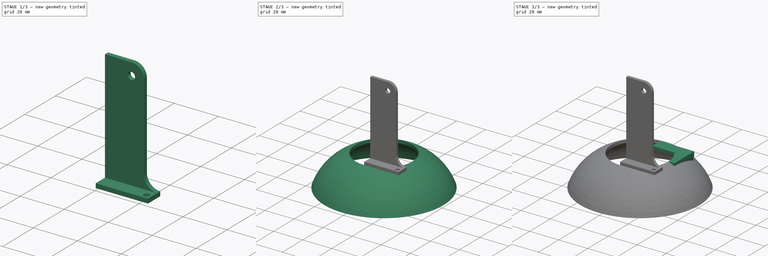
[diagram: build sequence overview — one tinted view per stage of 3, left to right]
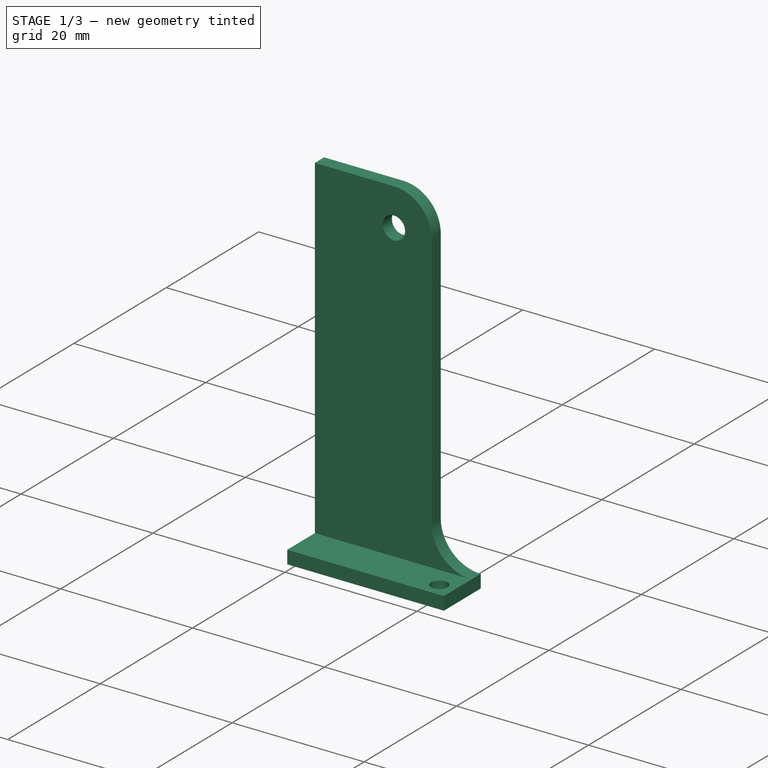
[diagram: stage 1 of 3 — iso view after this stage's code; geometry added in this stage tinted green]
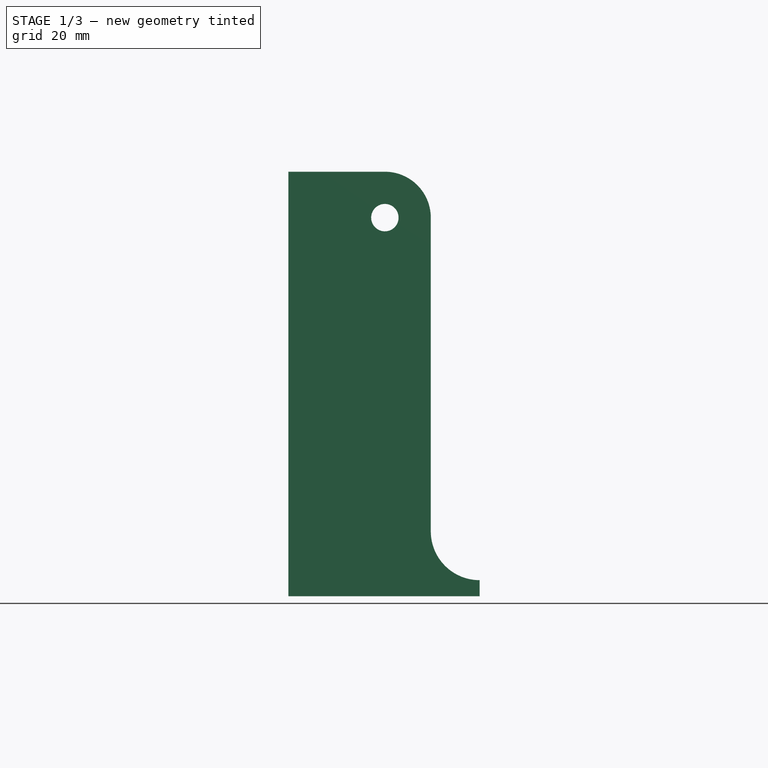
[diagram: stage 1 of 3 — front view after this stage's code; geometry added in this stage tinted green]
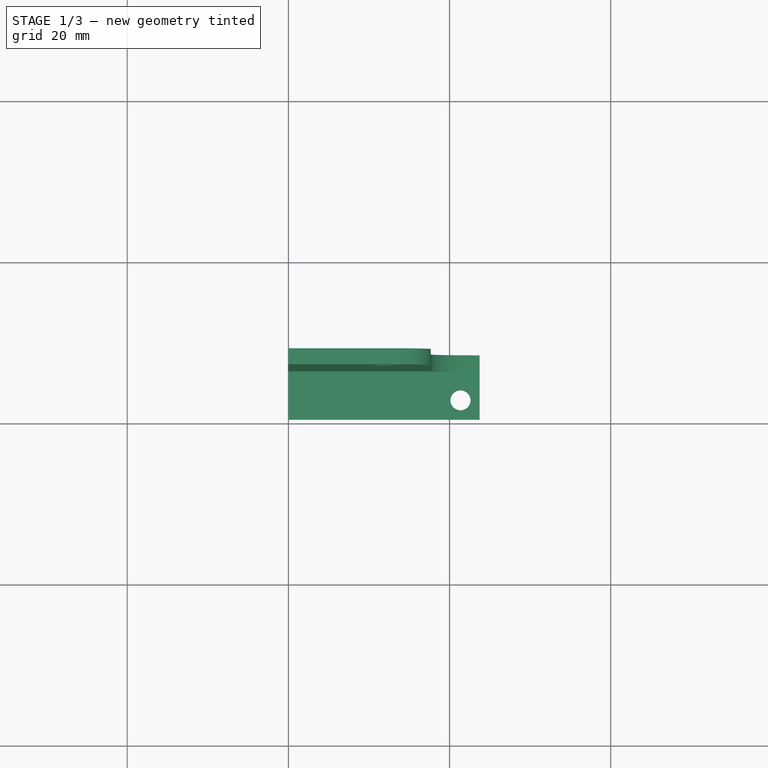
[diagram: stage 1 of 3 — top view after this stage's code; geometry added in this stage tinted green]
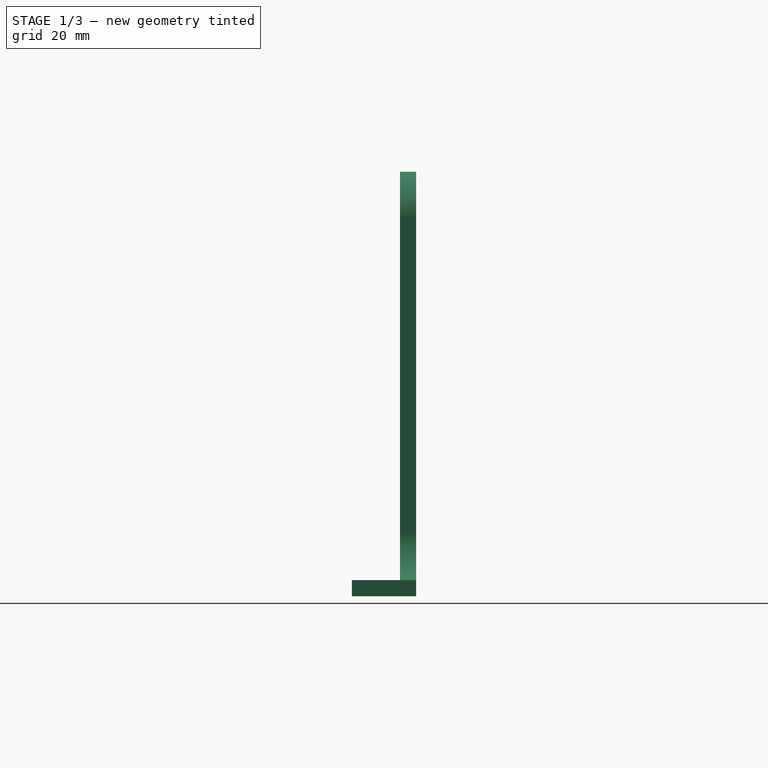
[diagram: stage 1 of 3 — right view after this stage's code; geometry added in this stage tinted green]
FCSTD DOCUMENT  (FreeCAD 0.18.4R)
Label: 5
License: All rights reserved
LicenseURL: http://en.wikipedia.org/wiki/All_rights_reserved
objects: Sketcher::SketchObject×6, PartDesign::Pad×4, PartDesign::Mirrored×3, PartDesign::Revolution×2, PartDesign::Body×2, PartDesign::Plane×1, PartDesign::Line×1, PartDesign::Pocket×1, PartDesign::MultiTransform×1
note: 28 computed .brp shape members not serialized (recipe doc carries the construction recipe); baked Part::Feature solids carry a one-line shape summary decoded from their .brp

FEATURE [Sketcher::SketchObject] Sketch002  label="Sketch003"
  MapMode = 5
  Placement = pos=(1e-15,5.14e-14,35.2204) rot=(0,0,1;0rad)
  constraints (1):
    c: Diameter(g0) = 2.5
FEATURE [PartDesign::Pocket] Pocket  label="Unnamed"
  Length = 100
  Length2 = 100
  Type = 0
FEATURE [PartDesign::MultiTransform] MultiTransform  label="Unnamed"
FEATURE [PartDesign::Mirrored] Mirrored  label="Unnamed"
FEATURE [PartDesign::Mirrored] Mirrored001  label="Unnamed"
FEATURE [PartDesign::Body] Body
  Group = -> [Sketch,Revolution,DatumPlane,Sketch001,Pad,DatumLine,Revolution001,Sketch002,Pocket,MultiTransform,Mirrored,Mirrored001]
  Origin = -> Origin
  Tip = -> MultiTransform
FEATURE [PartDesign::Body] Body001  label="Unnamed"
FEATURE [Sketcher::SketchObject] Sketch003  label="Unnamed"
FEATURE [PartDesign::Pad] Pad001
  Length = 2
  Length2 = 100
  Profile = -> Sketch003
  Type = 0
FEATURE [Sketcher::SketchObject] Sketch005
  ExternalGeometry = -> [Pad001]
  MapMode = 5
  Placement = pos=(0,-11.53,1.68e-14) rot=(0,0.707107,0.707107;3.14159rad)
  Support = -> [Pad001]
  constraints (17):
    c: Distance(g0,g-3) = 45
    c: Diameter(g0) = 3.4
    c: Distance(g0,g-2) = 11.975
    c: Coincident(g1,g2)
    c: Coincident(g2,g3)
    c: Horizontal(g3)
    c: Vertical(g2)
    c: Vertical(g4)
    c: Distance(g0,g3) = 5.7
    c: Tangent(g4,g5) = -1.5708
    c: Tangent(g3,g5) = -1.5708
    c: Coincident(g1,g-3)
    c: Coincident(g5,g0)
    c: Coincident(g6,g-3)
    c: Tangent(g6,g-3)
    c: Tangent(g4,g6) = 1.5708
    c: Coincident(g1,g6)
FEATURE [PartDesign::Pad] Pad002
  BaseFeature = -> Pad001
  Length = 2
  Length2 = 100
  Profile = -> Sketch005
  Reversed = true
  Type = 0
FEATURE [Sketcher::SketchObject] Sketch006  label="Unnamed"
  ExternalGeometry = -> [Pad002]
  constraints (9):
    c: Coincident(g0,g-3)
    c: Vertical(g0)
    c: Coincident(g1,g-4)
    c: Coincident(g1,g0)
    c: Coincident(g2,g1)
    c: Coincident(g2,g-4)
    c: Coincident(g3,g2)
    c: Coincident(g3,g0)
    c: Angle(g2,g1) = 0.261799
FEATURE [PartDesign::Pad] Pad003  label="Unnamed"
  Length = 100
  Length2 = 100
  Type = 0
FEATURE [PartDesign::Mirrored] Mirrored002  label="Unnamed"
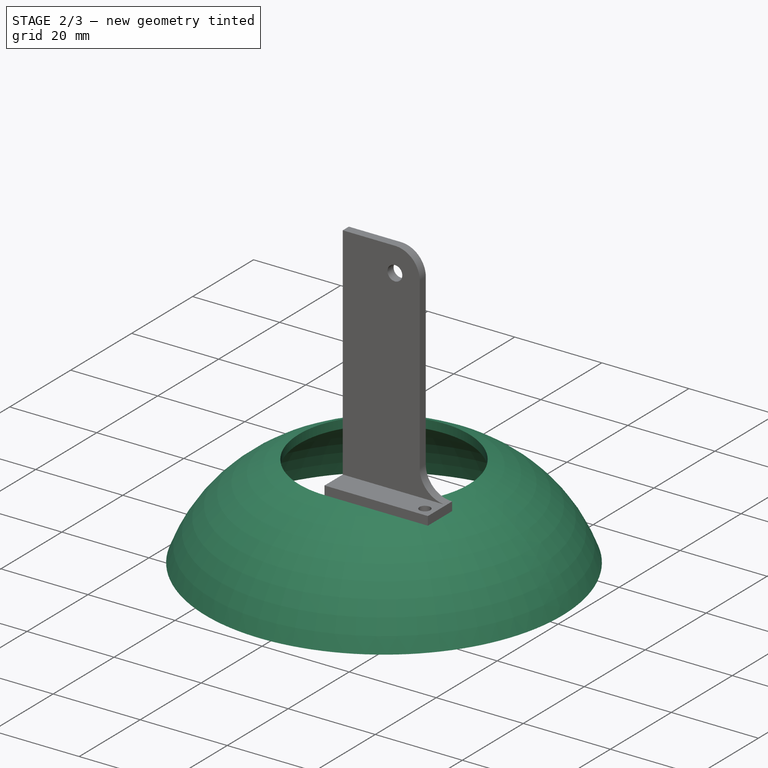
[diagram: stage 2 of 3 — iso view after this stage's code; geometry added in this stage tinted green]
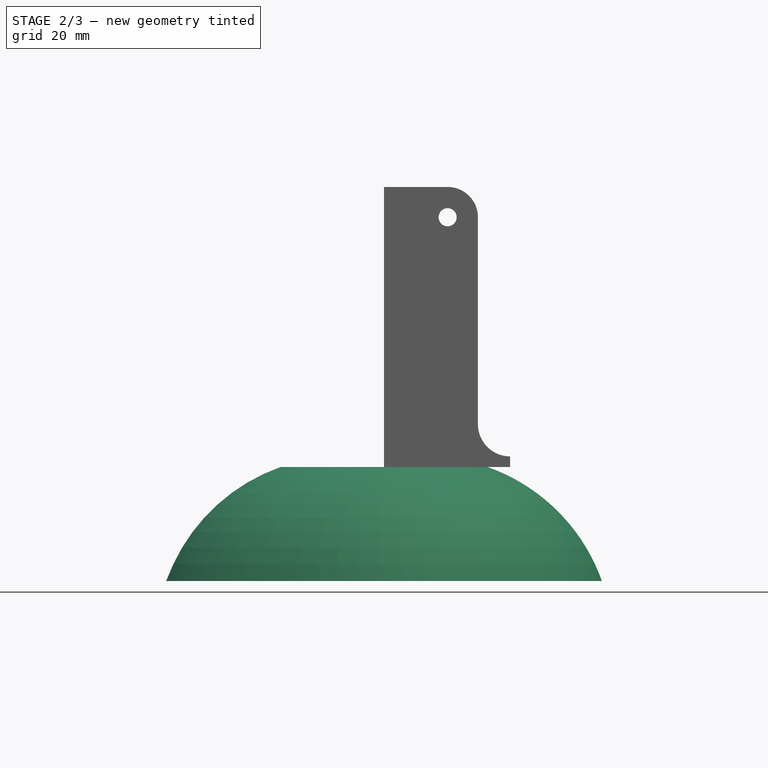
[diagram: stage 2 of 3 — front view after this stage's code; geometry added in this stage tinted green]
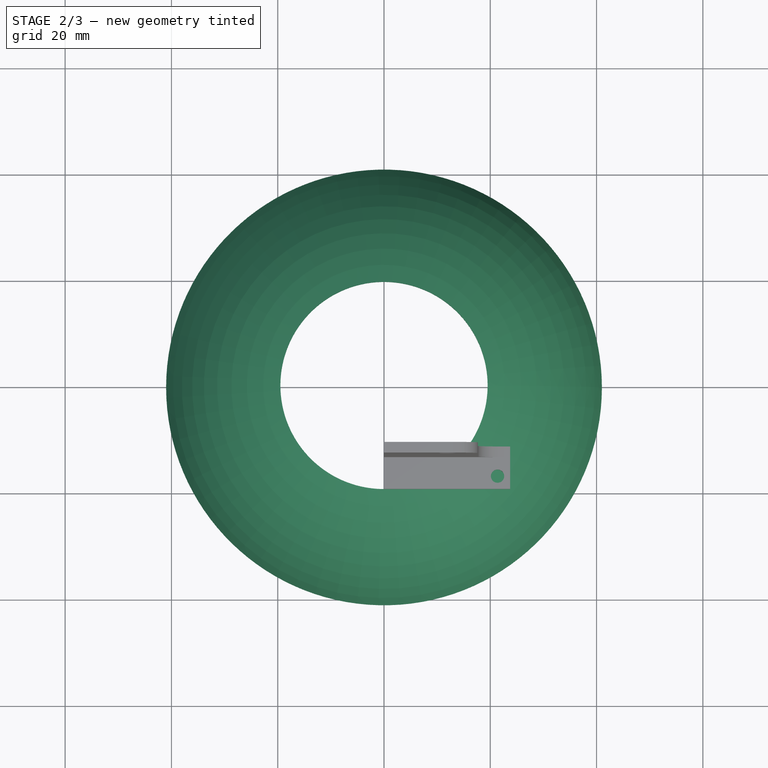
[diagram: stage 2 of 3 — top view after this stage's code; geometry added in this stage tinted green]
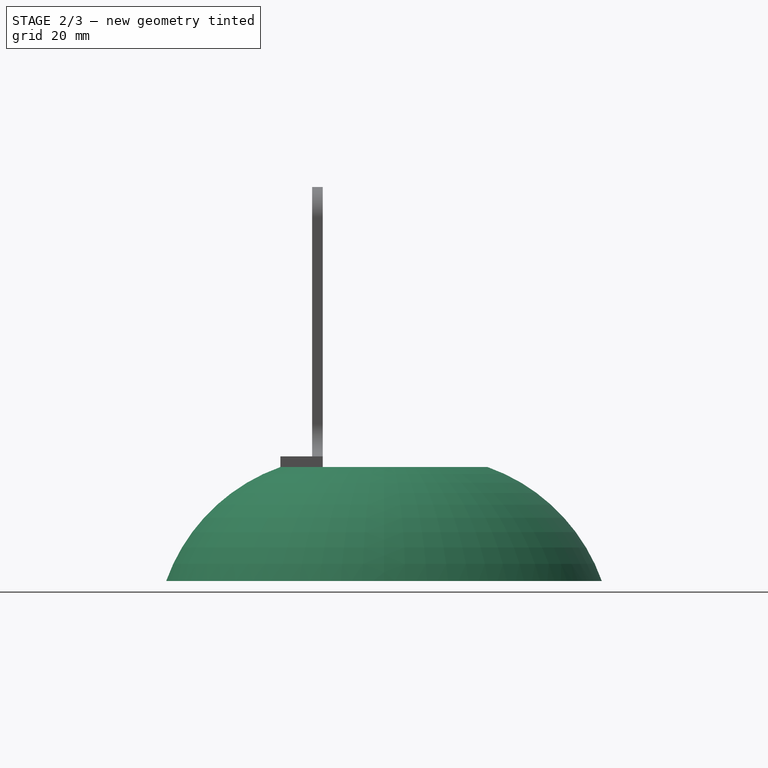
[diagram: stage 2 of 3 — right view after this stage's code; geometry added in this stage tinted green]
FEATURE [Sketcher::SketchObject] Sketch
  MapMode = 5
  Placement = pos=(0,0,0) rot=(1,0,0;1.5708rad)
  Support = -> [XZ_Plane]
  constraints (21):
    c: PointOnObject(g0,g-1)
    c: PointOnObject(g0,g-1)
    c: PointOnObject(g1,g-2)
    c: Coincident(g1,g0)
    c: Horizontal(g1)
    c: Distance(g0,g-1) = 43
    c: Distance(g1) = 17
    c: Distance(g-1,g1) = 34
    c: Coincident(g2,g0)
    c: PointOnObject(g2,g0)
    c: Distance(g2,g-2) = 40.2
    c: Distance(g2,g-2) = 19.5
    c: Coincident(g3,g2)
    c: Vertical(g3)
    c: Distance(g3) = 2
    c: Coincident(g4,g2)
    c: Horizontal(g4)
    c: Distance(g4) = 0.8
    c: Coincident(g5,g3)
    c: Coincident(g5,g4)
    c: Vertical(g5,g2)
FEATURE [PartDesign::Revolution] Revolution
  Angle = 360
  Axis = (0,2e-16,1)
  Base = (0,0,0)
  Placement = pos=(0,0,0) rot=(1,0,0;1.5708rad)
  Profile = -> Sketch
  ReferenceAxis = -> Sketch [V_Axis]
  Reversed = true
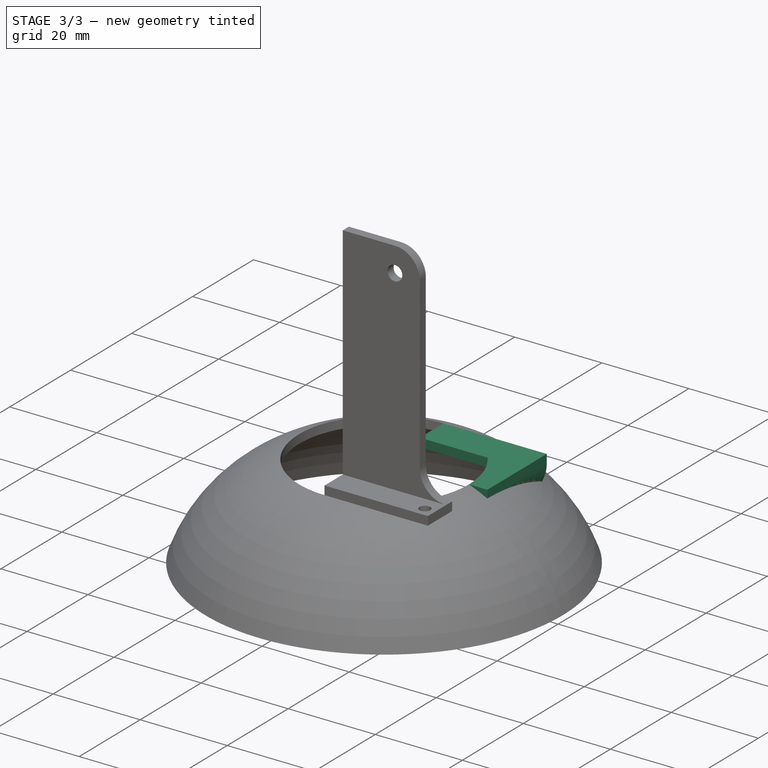
[diagram: stage 3 of 3 — iso view after this stage's code; geometry added in this stage tinted green]
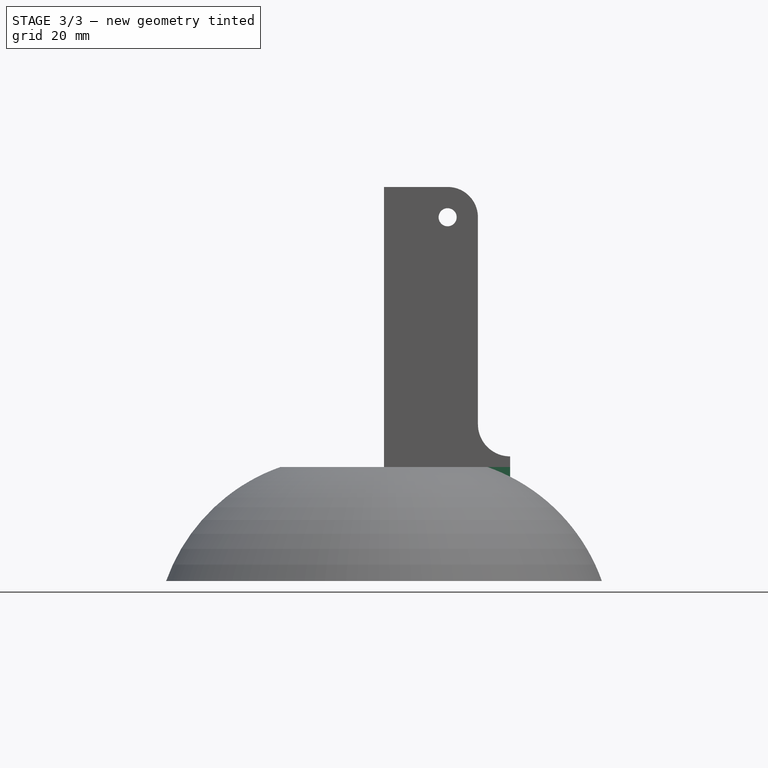
[diagram: stage 3 of 3 — front view after this stage's code; geometry added in this stage tinted green]
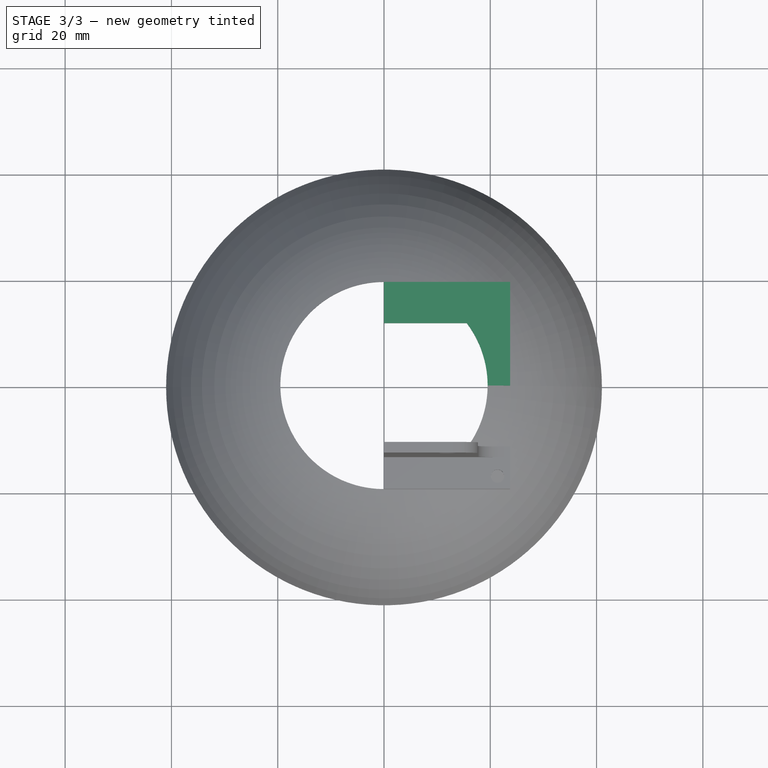
[diagram: stage 3 of 3 — top view after this stage's code; geometry added in this stage tinted green]
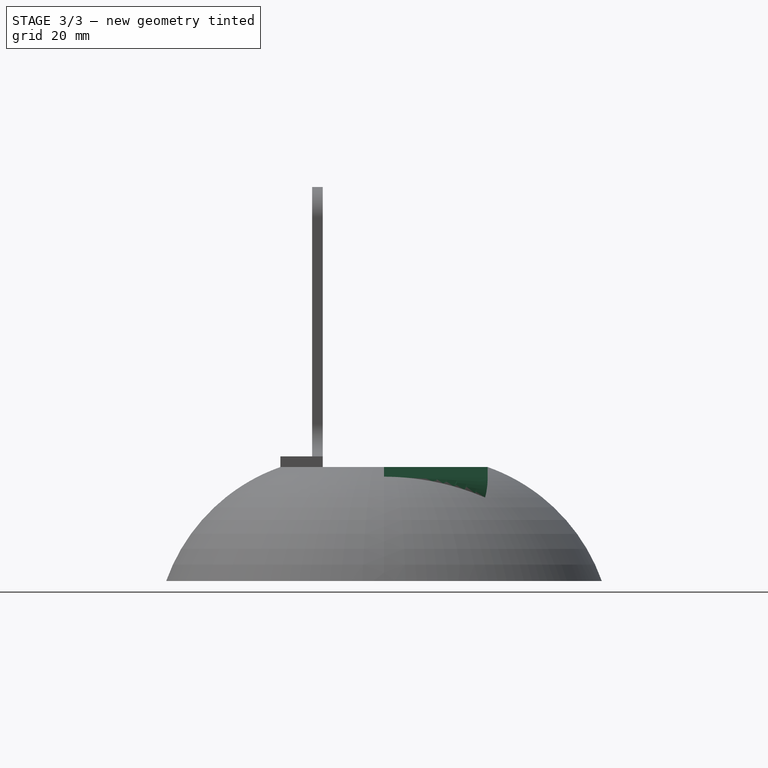
[diagram: stage 3 of 3 — right view after this stage's code; geometry added in this stage tinted green]
FEATURE [PartDesign::Plane] DatumPlane
  Length = 26.8601
  MapMode = 11
  Placement = pos=(0,3.13e-14,35.2204) rot=(0,0,1;1.5708rad)
  ResizeMode = 0
  Support = -> [Revolution]
  Width = 33.9749
FEATURE [Sketcher::SketchObject] Sketch001
  MapMode = 5
  Placement = pos=(0,3.13e-14,35.2204) rot=(0,0,1;1.5708rad)
  Support = -> [DatumPlane]
  constraints (26):
    c: PointOnObject(g0,g-1)
    c: Coincident(g0,g-1)
    c: Coincident(g1,g-1)
    c: Horizontal(g1)
    c: Equal(g1,g0)
    c: Distance(g1,g0) = 23.5
    c: PointOnObject(g2,g-2)
    c: Coincident(g2,g-1)
    c: Coincident(g3,g-1)
    c: Vertical(g3)
    c: Equal(g2,g3)
    c: Distance(g3,g2) = 39
    c: PointOnObject(g4,g-1)
    c: Vertical(g4)
    c: Coincident(g4,g5)
    c: PointOnObject(g5,g-2)
    c: Horizontal(g5)
    c: Coincident(g5,g6)
    c: Coincident(g7,g-1)
    c: Coincident(g7,g6)
    c: Coincident(g6,g3)
    c: Coincident(g8,g1)
    c: Vertical(g8)
    c: Coincident(g9,g8)
    c: Coincident(g9,g4)
    c: Coincident(g7,g8)
FEATURE [PartDesign::Pad] Pad
  BaseFeature = -> Revolution
  Length = 2
  Length2 = 95
  Placement = pos=(0,0,0) rot=(1,0,0;1.5708rad)
  Profile = -> Sketch001
  Reversed = true
  Type = 0
FEATURE [PartDesign::Line] DatumLine
  AttacherType = Attacher::AttachEngineLine
  MapMode = 29
  Placement = pos=(18.947,11.8323,33.2204) rot=(0.92677,0.265611,0.265611;1.64677rad)
  Support = -> [Pad]
FEATURE [PartDesign::Revolution] Revolution001
  Angle = 30
  Axis = (0.529689,-0.848192,1.2e-15)
  Base = (18.947,11.8323,33.2204)
  BaseFeature = -> Pad
  Placement = pos=(0,0,0) rot=(1,0,0;1.5708rad)
  Profile = -> Pad [Face12]
  ReferenceAxis = -> DatumLine
  Reversed = true
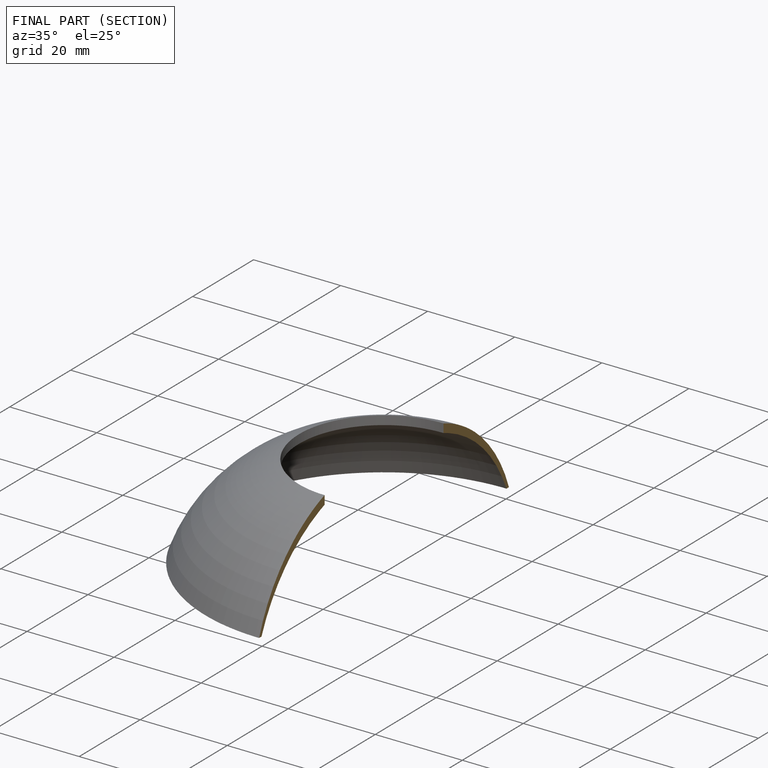
[diagram: finished part — half-section view (interior)]
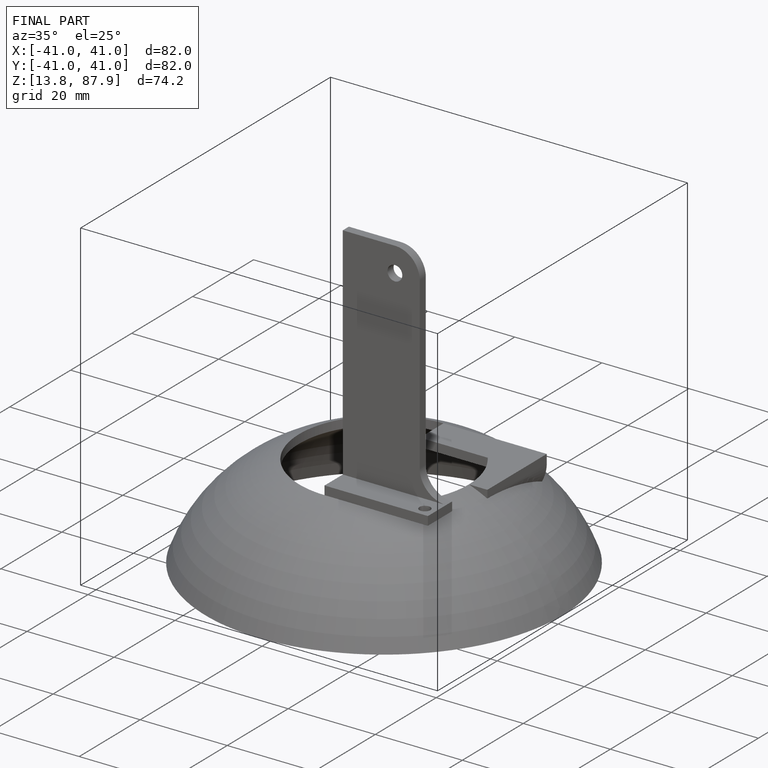
[diagram: finished part — iso view with bounding-box wireframe]
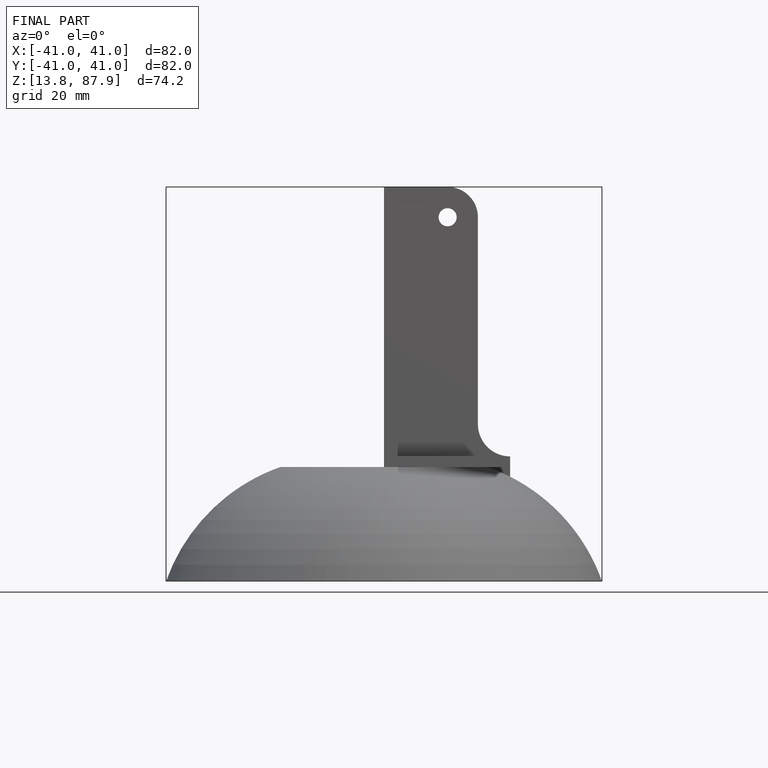
[diagram: finished part — front view with bounding-box wireframe]
